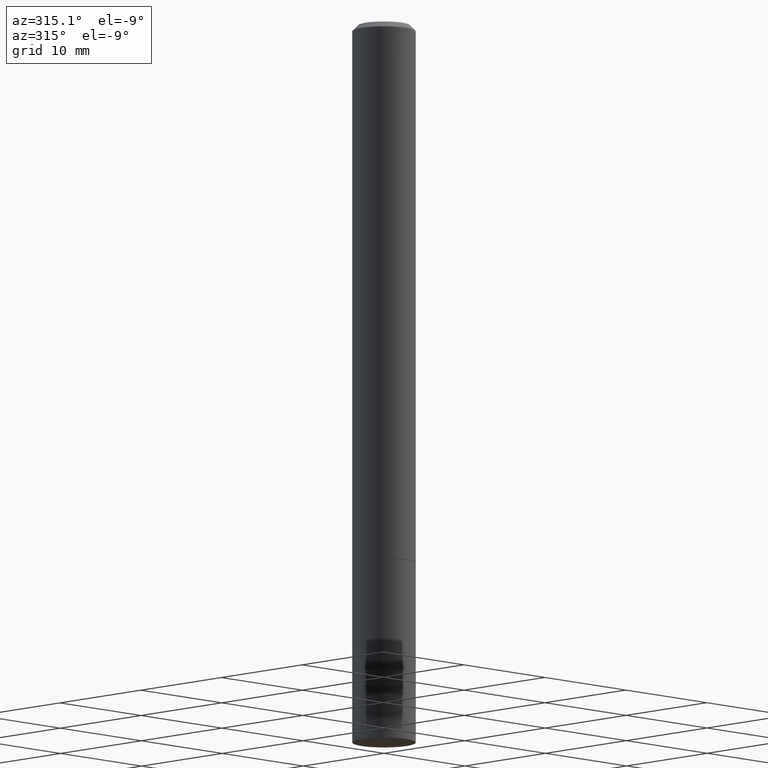
[diagram: clean part render]
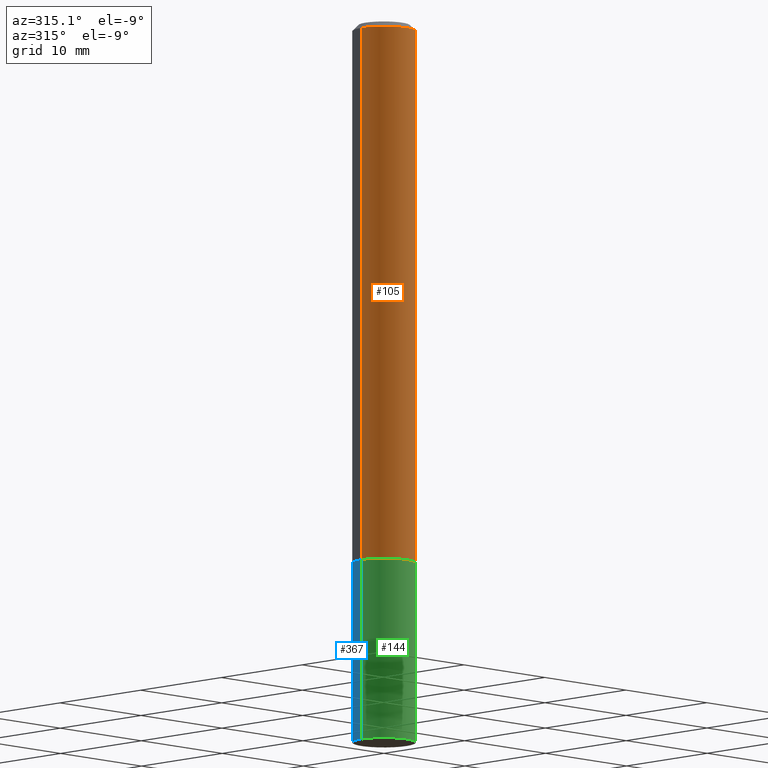
[diagram: same view with three faces highlighted in distinct colors, each labeled with its STEP entity id]
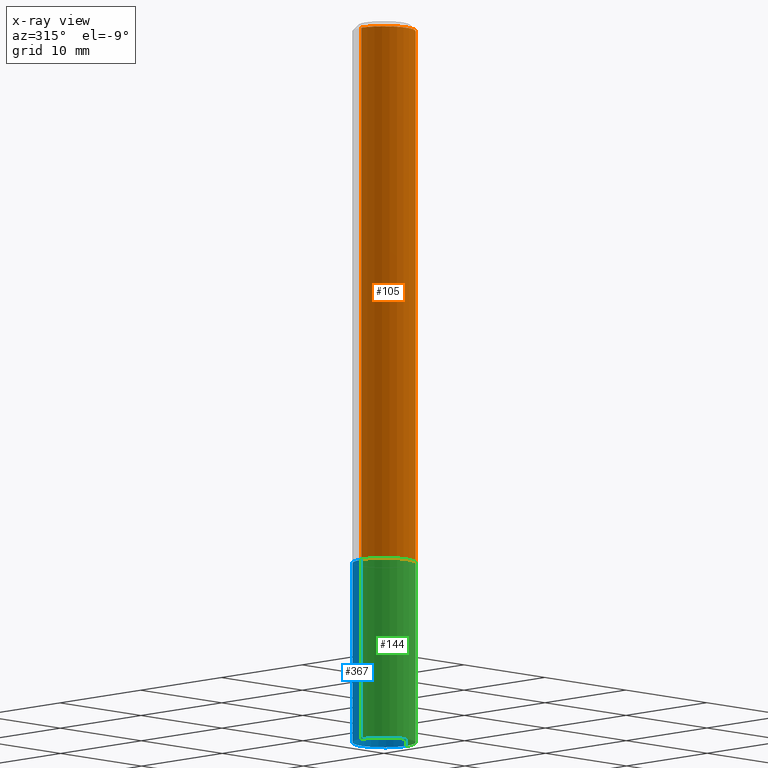
[diagram: x-ray of the same camera — body ghosted, the three highlighted faces saturated]
A machine part, auxiliary view with three faces highlighted in distinct colors.
The next image is the same camera in x-ray (body ghosted, the three faces saturated) — at least one of them is partly hidden behind the body in this view.
Their STEP definitions:

[orange] entity #105 — the highlighted cylindrical surface (edge-blend (fillet) strip) has radius 2.7788 mm, axis along (-0, 0, 1).
#10 = DIRECTION ( 'NONE',  ( -2.445468806185136597E-29, 3.491481338843145583E-15, 1.000000000000000000 ) ) ;
#15 = CARTESIAN_POINT ( 'NONE',  ( -0.1093999999999999972, -2.529099074962906760E-15, -1.874000000000000110 ) ) ;
#72 = FACE_OUTER_BOUND ( 'NONE', #125, .T. ) ;
#84 = VECTOR ( 'NONE', #295, 39.37007874015748143 ) ;
#86 = VERTEX_POINT ( 'NONE', #239 ) ;
#92 = CARTESIAN_POINT ( 'NONE',  ( 0.1093999999999999001, -7.639361169388768816E-16, 5.334537392720749004E-30 ) ) ;
#98 = EDGE_CURVE ( 'NONE', #149, #219, #135, .T. ) ;
#101 = CARTESIAN_POINT ( 'NONE',  ( -0.1093999999999997752, 6.941064901620129917E-16, -0.02000000000000002470 ) ) ;
#105 = ADVANCED_FACE ( 'NONE', ( #72 ), #130, .T. ) ;
#115 = EDGE_CURVE ( 'NONE', #154, #86, #323, .T. ) ;
#118 = ORIENTED_EDGE ( 'NONE', *, *, #115, .T. ) ;
#125 = EDGE_LOOP ( 'NONE', ( #218, #249, #118, #308 ) ) ;
#130 = CYLINDRICAL_SURFACE ( 'NONE', #357, 0.1093999999999999001 ) ;
#135 = LINE ( 'NONE', #250, #215 ) ;
#149 = VERTEX_POINT ( 'NONE', #15 ) ;
#152 = CIRCLE ( 'NONE', #297, 0.1093999999999997752 ) ;
#154 = VERTEX_POINT ( 'NONE', #327 ) ;
#161 = CARTESIAN_POINT ( 'NONE',  ( 4.582808542790945516E-29, -6.543036028992054911E-15, -1.874000000000000110 ) ) ;
#182 = EDGE_CURVE ( 'NONE', #149, #154, #288, .T. ) ;
#203 = DIRECTION ( 'NONE',  ( 1.000000000000000000, -6.982962677686266711E-15, 4.876176775795935793E-29 ) ) ;
#215 = VECTOR ( 'NONE', #231, 39.37007874015748143 ) ;
#218 = ORIENTED_EDGE ( 'NONE', *, *, #98, .F. ) ;
#219 = VERTEX_POINT ( 'NONE', #101 ) ;
#230 = DIRECTION ( 'NONE',  ( -2.445468806185136597E-29, 3.491481338843145583E-15, 1.000000000000000000 ) ) ;
#231 = DIRECTION ( 'NONE',  ( -2.445468806185136877E-29, 3.491481338843145188E-15, 1.000000000000000000 ) ) ;
#239 = CARTESIAN_POINT ( 'NONE',  ( 0.1093999999999997752, -8.203681077330669845E-16, -0.02000000000000002470 ) ) ;
#249 = ORIENTED_EDGE ( 'NONE', *, *, #182, .T. ) ;
#250 = CARTESIAN_POINT ( 'NONE',  ( -0.1093999999999999001, 7.773337529215488935E-16, -5.381314988738861811E-30 ) ) ;
#255 = DIRECTION ( 'NONE',  ( 1.000000000000000000, -6.982962677686269866E-15, 0.000000000000000000 ) ) ;
#288 = CIRCLE ( 'NONE', #352, 0.1093999999999999972 ) ;
#295 = DIRECTION ( 'NONE',  ( -2.445468806185136877E-29, 3.491481338843145188E-15, 1.000000000000000000 ) ) ;
#297 = AXIS2_PLACEMENT_3D ( 'NONE', #375, #230, #349 ) ;
#308 = ORIENTED_EDGE ( 'NONE', *, *, #332, .F. ) ;
#323 = LINE ( 'NONE', #92, #84 ) ;
#327 = CARTESIAN_POINT ( 'NONE',  ( 0.1093999999999999972, -7.306972145930932483E-15, -1.874000000000000110 ) ) ;
#332 = EDGE_CURVE ( 'NONE', #219, #86, #152, .T. ) ;
#349 = DIRECTION ( 'NONE',  ( 1.000000000000000000, -6.982962677686266711E-15, 0.000000000000000000 ) ) ;
#350 = CARTESIAN_POINT ( 'NONE',  ( 0.000000000000000000, 0.000000000000000000, 0.000000000000000000 ) ) ;
#352 = AXIS2_PLACEMENT_3D ( 'NONE', #161, #10, #255 ) ;
#353 = DIRECTION ( 'NONE',  ( -2.445468806185136597E-29, 3.491481338843145583E-15, 1.000000000000000000 ) ) ;
#357 = AXIS2_PLACEMENT_3D ( 'NONE', #350, #353, #203 ) ;
#375 = CARTESIAN_POINT ( 'NONE',  ( 4.890937612370279289E-31, -6.982962677686299005E-17, -0.02000000000000002470 ) ) ;

[blue] entity #367 — the highlighted cylindrical surface (edge-blend (fillet) strip) has radius 2.7788 mm, axis along (-0, 0, 1).
#19 = EDGE_CURVE ( 'NONE', #190, #372, #164, .T. ) ;
#20 = CARTESIAN_POINT ( 'NONE',  ( 0.1093999999999999695, -9.479241828064070897E-15, -2.500000000000000000 ) ) ;
#27 = EDGE_CURVE ( 'NONE', #190, #116, #317, .T. ) ;
#32 = FACE_OUTER_BOUND ( 'NONE', #151, .T. ) ;
#34 = EDGE_CURVE ( 'NONE', #116, #365, #91, .T. ) ;
#36 = DIRECTION ( 'NONE',  ( 1.000000000000000000, -6.982962677686266711E-15, 4.876176775795935793E-29 ) ) ;
#37 = DIRECTION ( 'NONE',  ( 1.000000000000000000, -6.982962677686269866E-15, 0.000000000000000000 ) ) ;
#60 = ORIENTED_EDGE ( 'NONE', *, *, #34, .F. ) ;
#83 = CARTESIAN_POINT ( 'NONE',  ( 4.585254011597131119E-29, -6.546527510330898707E-15, -1.875000000000000000 ) ) ;
#91 = CIRCLE ( 'NONE', #268, 0.1093999999999999972 ) ;
#104 = AXIS2_PLACEMENT_3D ( 'NONE', #310, #150, #36 ) ;
#111 = CARTESIAN_POINT ( 'NONE',  ( -0.1093999999999999972, -6.860281675797831847E-15, -1.875000000000000000 ) ) ;
#116 = VERTEX_POINT ( 'NONE', #382 ) ;
#117 = CARTESIAN_POINT ( 'NONE',  ( 6.113672015462842613E-29, -8.728703347107864943E-15, -2.500000000000000000 ) ) ;
#147 = DIRECTION ( 'NONE',  ( -2.445468806185136877E-29, 3.491481338843145188E-15, 1.000000000000000000 ) ) ;
#150 = DIRECTION ( 'NONE',  ( -2.445468806185136597E-29, 3.491481338843145583E-15, 1.000000000000000000 ) ) ;
#151 = EDGE_LOOP ( 'NONE', ( #213, #196, #60, #273 ) ) ;
#164 = CIRCLE ( 'NONE', #253, 0.1093999999999999972 ) ;
#165 = VECTOR ( 'NONE', #267, 39.37007874015748143 ) ;
#179 = CARTESIAN_POINT ( 'NONE',  ( -0.1093999999999999972, 7.773337529215495838E-16, -5.381314988738867416E-30 ) ) ;
#190 = VERTEX_POINT ( 'NONE', #20 ) ;
#194 = DIRECTION ( 'NONE',  ( 1.000000000000000000, -6.982962677686269866E-15, 0.000000000000000000 ) ) ;
#196 = ORIENTED_EDGE ( 'NONE', *, *, #374, .T. ) ;
#211 = LINE ( 'NONE', #179, #165 ) ;
#213 = ORIENTED_EDGE ( 'NONE', *, *, #19, .T. ) ;
#245 = DIRECTION ( 'NONE',  ( -2.445468806185136597E-29, 3.491481338843145583E-15, 1.000000000000000000 ) ) ;
#253 = AXIS2_PLACEMENT_3D ( 'NONE', #117, #245, #194 ) ;
#267 = DIRECTION ( 'NONE',  ( -2.445468806185136877E-29, 3.491481338843145188E-15, 1.000000000000000000 ) ) ;
#268 = AXIS2_PLACEMENT_3D ( 'NONE', #83, #274, #37 ) ;
#273 = ORIENTED_EDGE ( 'NONE', *, *, #27, .F. ) ;
#274 = DIRECTION ( 'NONE',  ( -2.445468806185136597E-29, 3.491481338843145583E-15, 1.000000000000000000 ) ) ;
#287 = CARTESIAN_POINT ( 'NONE',  ( -0.1093999999999999695, -7.964767230168986582E-15, -2.500000000000000000 ) ) ;
#310 = CARTESIAN_POINT ( 'NONE',  ( 0.000000000000000000, 0.000000000000000000, 0.000000000000000000 ) ) ;
#315 = CYLINDRICAL_SURFACE ( 'NONE', #104, 0.1093999999999999972 ) ;
#317 = LINE ( 'NONE', #360, #384 ) ;
#360 = CARTESIAN_POINT ( 'NONE',  ( 0.1093999999999999972, -7.639361169388775718E-16, 5.334537392720753909E-30 ) ) ;
#365 = VERTEX_POINT ( 'NONE', #111 ) ;
#367 = ADVANCED_FACE ( 'NONE', ( #32 ), #315, .T. ) ;
#372 = VERTEX_POINT ( 'NONE', #287 ) ;
#374 = EDGE_CURVE ( 'NONE', #372, #365, #211, .T. ) ;
#382 = CARTESIAN_POINT ( 'NONE',  ( 0.1093999999999999972, -7.310463627269777068E-15, -1.875000000000000000 ) ) ;
#384 = VECTOR ( 'NONE', #147, 39.37007874015748143 ) ;

[green] entity #144 — the highlighted cylindrical surface (edge-blend (fillet) strip) has radius 2.7788 mm, axis along (-0, 0, 1).
#17 = CARTESIAN_POINT ( 'NONE',  ( 6.113672015462842613E-29, -8.728703347107864943E-15, -2.500000000000000000 ) ) ;
#18 = AXIS2_PLACEMENT_3D ( 'NONE', #233, #259, #97 ) ;
#20 = CARTESIAN_POINT ( 'NONE',  ( 0.1093999999999999695, -9.479241828064070897E-15, -2.500000000000000000 ) ) ;
#27 = EDGE_CURVE ( 'NONE', #190, #116, #317, .T. ) ;
#46 = DIRECTION ( 'NONE',  ( 1.000000000000000000, -6.982962677686269866E-15, 0.000000000000000000 ) ) ;
#67 = DIRECTION ( 'NONE',  ( -2.445468806185136597E-29, 3.491481338843145583E-15, 1.000000000000000000 ) ) ;
#70 = EDGE_CURVE ( 'NONE', #365, #116, #321, .T. ) ;
#89 = ORIENTED_EDGE ( 'NONE', *, *, #374, .F. ) ;
#97 = DIRECTION ( 'NONE',  ( 1.000000000000000000, -6.982962677686266711E-15, 4.876176775795935793E-29 ) ) ;
#100 = CYLINDRICAL_SURFACE ( 'NONE', #18, 0.1093999999999999972 ) ;
#103 = AXIS2_PLACEMENT_3D ( 'NONE', #121, #67, #269 ) ;
#111 = CARTESIAN_POINT ( 'NONE',  ( -0.1093999999999999972, -6.860281675797831847E-15, -1.875000000000000000 ) ) ;
#116 = VERTEX_POINT ( 'NONE', #382 ) ;
#121 = CARTESIAN_POINT ( 'NONE',  ( 4.585254011597131119E-29, -6.546527510330898707E-15, -1.875000000000000000 ) ) ;
#129 = ORIENTED_EDGE ( 'NONE', *, *, #27, .T. ) ;
#132 = DIRECTION ( 'NONE',  ( -2.445468806185136597E-29, 3.491481338843145583E-15, 1.000000000000000000 ) ) ;
#136 = EDGE_CURVE ( 'NONE', #372, #190, #232, .T. ) ;
#144 = ADVANCED_FACE ( 'NONE', ( #376 ), #100, .T. ) ;
#147 = DIRECTION ( 'NONE',  ( -2.445468806185136877E-29, 3.491481338843145188E-15, 1.000000000000000000 ) ) ;
#148 = ORIENTED_EDGE ( 'NONE', *, *, #136, .T. ) ;
#156 = ORIENTED_EDGE ( 'NONE', *, *, #70, .F. ) ;
#165 = VECTOR ( 'NONE', #267, 39.37007874015748143 ) ;
#179 = CARTESIAN_POINT ( 'NONE',  ( -0.1093999999999999972, 7.773337529215495838E-16, -5.381314988738867416E-30 ) ) ;
#190 = VERTEX_POINT ( 'NONE', #20 ) ;
#193 = EDGE_LOOP ( 'NONE', ( #89, #148, #129, #156 ) ) ;
#211 = LINE ( 'NONE', #179, #165 ) ;
#232 = CIRCLE ( 'NONE', #341, 0.1093999999999999972 ) ;
#233 = CARTESIAN_POINT ( 'NONE',  ( 0.000000000000000000, 0.000000000000000000, 0.000000000000000000 ) ) ;
#259 = DIRECTION ( 'NONE',  ( -2.445468806185136597E-29, 3.491481338843145583E-15, 1.000000000000000000 ) ) ;
#267 = DIRECTION ( 'NONE',  ( -2.445468806185136877E-29, 3.491481338843145188E-15, 1.000000000000000000 ) ) ;
#269 = DIRECTION ( 'NONE',  ( 1.000000000000000000, -6.982962677686269866E-15, 0.000000000000000000 ) ) ;
#287 = CARTESIAN_POINT ( 'NONE',  ( -0.1093999999999999695, -7.964767230168986582E-15, -2.500000000000000000 ) ) ;
#317 = LINE ( 'NONE', #360, #384 ) ;
#321 = CIRCLE ( 'NONE', #103, 0.1093999999999999972 ) ;
#341 = AXIS2_PLACEMENT_3D ( 'NONE', #17, #132, #46 ) ;
#360 = CARTESIAN_POINT ( 'NONE',  ( 0.1093999999999999972, -7.639361169388775718E-16, 5.334537392720753909E-30 ) ) ;
#365 = VERTEX_POINT ( 'NONE', #111 ) ;
#372 = VERTEX_POINT ( 'NONE', #287 ) ;
#374 = EDGE_CURVE ( 'NONE', #372, #365, #211, .T. ) ;
#376 = FACE_OUTER_BOUND ( 'NONE', #193, .T. ) ;
#382 = CARTESIAN_POINT ( 'NONE',  ( 0.1093999999999999972, -7.310463627269777068E-15, -1.875000000000000000 ) ) ;
#384 = VECTOR ( 'NONE', #147, 39.37007874015748143 ) ;